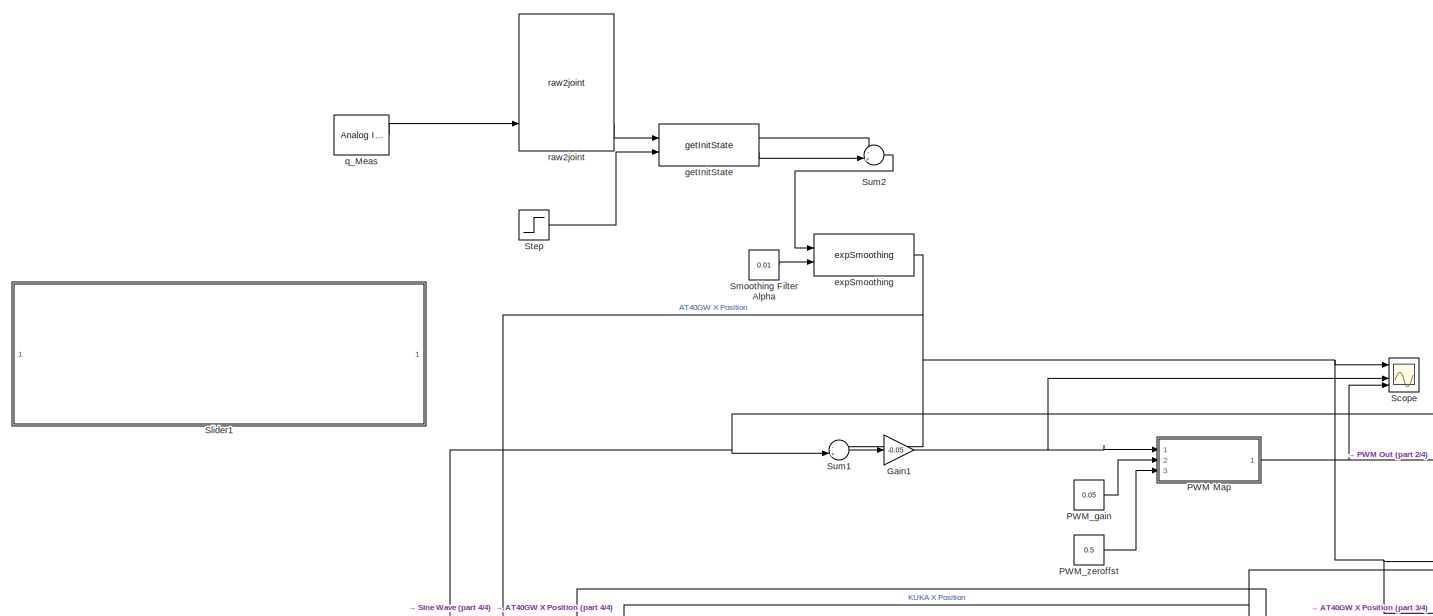
[diagram: root canvas - part 1/4, full width, top band]
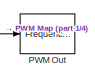
[diagram: root canvas - part 2/4, middle right region]
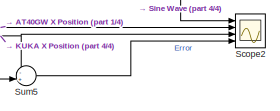
[diagram: root canvas - part 3/4, middle right region]
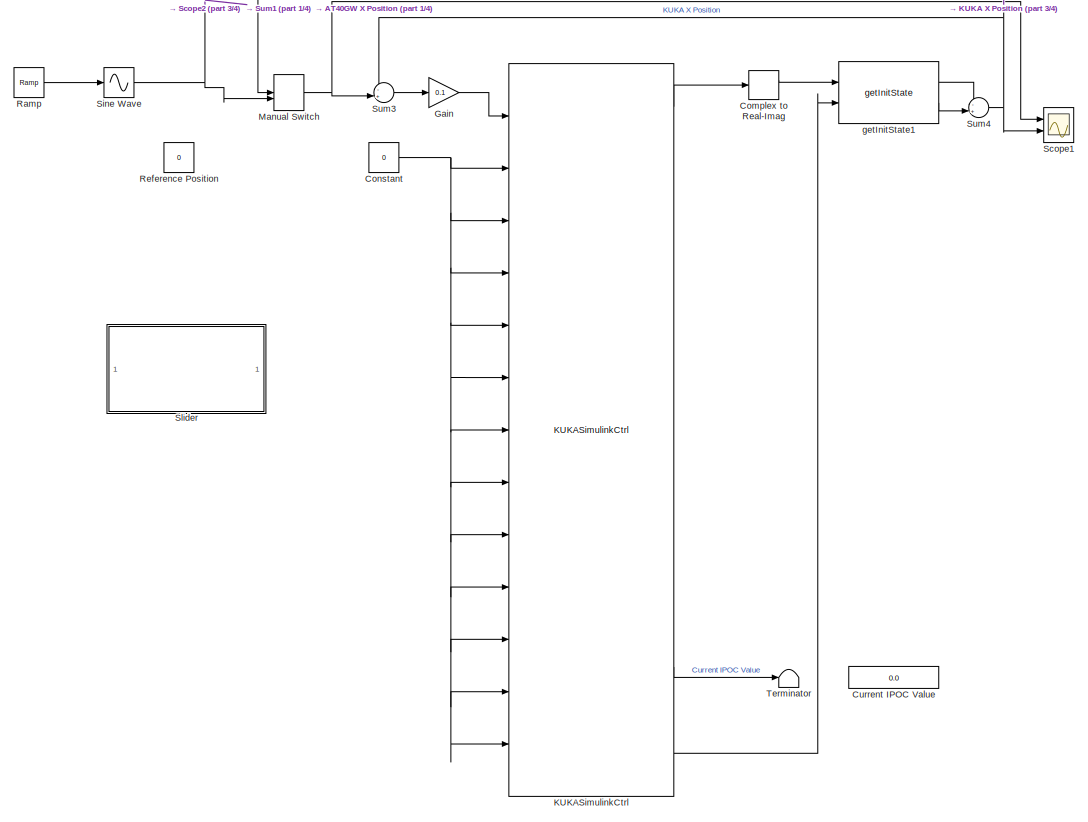
[diagram: root canvas - part 4/4, bottom center region]
MODEL slx_104f3733720f
KIND model
CONFIG AbsTol = auto
CONFIG FixedStep = 0.01
CONFIG MaxStep = auto
CONFIG MinStep = auto
CONFIG RelTol = 1e-3
CONFIG SampleTimeConstraint = Unconstrained
CONFIG Solver = ode5
CONFIG SolverMode = Auto
CONFIG SolverName = ode5
CONFIG StartTime = 0.0
CONFIG StopTime = inf
BLOCK [ComplexToRealImag] Complex to Real-Imag
  Ports = [1, 2]
BLOCK [Constant] Constant
  Value = 0
BLOCK [Display] Current IPOC Value
  Decimation = 1
  Floating = on
  Ports = []
BLOCK [Gain] Gain
  Gain = 0.1
  OutDataTypeStr = Inherit: Inherit via internal rule
  ParamDataTypeStr = Inherit: Inherit via internal rule
  SaturateOnIntegerOverflow = off
BLOCK [Gain] Gain1
  Gain = -0.05
  OutDataTypeStr = Inherit: Inherit via internal rule
  ParamDataTypeStr = Inherit: Inherit via internal rule
  SaturateOnIntegerOverflow = off
BLOCK [Reference] KUKASimulinkCtrl  REF=dcpctrl/KUKASimulinkCtrl
  Ports = [13, 16]
  SourceBlock = dcpctrl/KUKASimulinkCtrl
  SourceType = SubSystem
BLOCK [ManualSwitch] Manual Switch
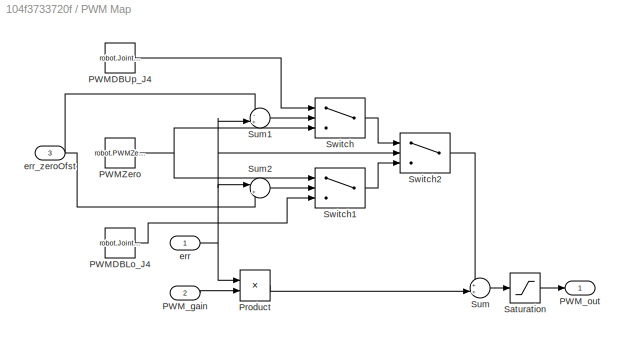
BLOCK [SubSystem] PWM Map
  Ports = [3, 1]
  RequestExecContextInheritance = off
  Variant = off
BLOCK [Constant] PWM Map/PWMDBLo_J4
  Value = robot.Joint(4).PWMLim.DBLower
BLOCK [Constant] PWM Map/PWMDBUp_J4
  Value = robot.Joint(4).PWMLim.DBUpper
BLOCK [Constant] PWM Map/PWMZero
  Value = robot.PWMZero
BLOCK [Inport] PWM Map/PWM_gain 
  IconDisplay = Port number
  Port = 2
BLOCK [Outport] PWM Map/PWM_out
  IconDisplay = Port number
BLOCK [Product] PWM Map/Product
  InputSameDT = off
  OutDataTypeStr = Inherit: Inherit via internal rule
  Ports = [2, 1]
  RndMeth = Floor
  SaturateOnIntegerOverflow = off
BLOCK [Saturate] PWM Map/Saturation
  InputPortMap = u0
  LowerLimit = robot.Joint(4).PWMLim.Min
  Ports = [1, 1]
  UpperLimit = robot.Joint(4).PWMLim.Max
BLOCK [Sum] PWM Map/Sum
  IconShape = round
  InputSameDT = off
  Inputs = ++|
  OutDataTypeStr = Inherit: Inherit via internal rule
  Ports = [2, 1]
  SaturateOnIntegerOverflow = off
BLOCK [Sum] PWM Map/Sum1
  IconShape = round
  InputSameDT = off
  Inputs = -+|
  OutDataTypeStr = Inherit: Inherit via internal rule
  Ports = [2, 1]
  SaturateOnIntegerOverflow = off
BLOCK [Sum] PWM Map/Sum2
  IconShape = round
  InputSameDT = off
  Inputs = |++
  OutDataTypeStr = Inherit: Inherit via internal rule
  Ports = [2, 1]
  SaturateOnIntegerOverflow = off
BLOCK [Switch] PWM Map/Switch
  Criteria = u2 > Threshold
  InputSameDT = off
  SaturateOnIntegerOverflow = off
BLOCK [Switch] PWM Map/Switch1
  InputSameDT = off
  SaturateOnIntegerOverflow = off
BLOCK [Switch] PWM Map/Switch2
  InputSameDT = off
  SaturateOnIntegerOverflow = off
BLOCK [Inport] PWM Map/err
  IconDisplay = Port number
BLOCK [Inport] PWM Map/err_zeroOfst
  IconDisplay = Port number
  Port = 3
BLOCK [Reference] PWM Out  REF=sldrtlib/Frequency Output
  AttributesFormatString = Humusoft\nMF644 [auto]
  Ports = [1]
  SourceBlock = sldrtlib/Frequency Output
  SourceType = Simulink Desktop Real-Time Frequency Output
BLOCK [Constant] PWM_gain
  Value = 0.05
BLOCK [Constant] PWM_zeroffst
  Value = 0.5
BLOCK [Reference] Ramp  REF=simulink/Sources/Ramp
  Ports = [0, 1]
  SourceBlock = simulink/Sources/Ramp
  SourceType = Ramp
BLOCK [Constant] Reference Position
  Value = 0
BLOCK [Scope] Scope
  NumInputPorts = 4
  Ports = [4]
  ScopeSpecificationString = Simulink.scopes.TimeScopeBlockCfg('CurrentConfiguration', extmgr.ConfigurationSet(extmgr.Configuration('Core','General UI',true),extmgr.Configuration('Core','Source UI',true),extmgr.Configuration('Sources','WiredSimulink',true),extmgr.Configuration('Visuals','Time Domain',true,'SerializedDisplays',{struct('MinYLimReal','-253.55081','MaxYLimReal','277.06961','YLabelReal','','MinYLimMag',' 0.00000',...<+1504ch>
BLOCK [Scope] Scope1
  NumInputPorts = 2
  Ports = [2]
  ScopeSpecificationString = Simulink.scopes.TimeScopeBlockCfg('CurrentConfiguration', extmgr.ConfigurationSet(extmgr.Configuration('Core','General UI',true),extmgr.Configuration('Core','Source UI',true),extmgr.Configuration('Sources','WiredSimulink',true,'DataLoggingVariableName','ScopeData1'),extmgr.Configuration('Visuals','Time Domain',true,'SerializedDisplays',{struct('MinYLimReal','-253.55081','MaxYLimReal','277.06961','...<+1526ch>
BLOCK [Scope] Scope2
  NumInputPorts = 4
  Ports = [4]
  ScopeSpecificationString = Simulink.scopes.TimeScopeBlockCfg('CurrentConfiguration', extmgr.ConfigurationSet(extmgr.Configuration('Core','General UI',true),extmgr.Configuration('Core','Source UI',true),extmgr.Configuration('Sources','WiredSimulink',true,'DataLoggingVariableName','ScopeData1'),extmgr.Configuration('Visuals','Time Domain',true,'SerializedDisplays',{struct('MinYLimReal','-452.63216','MaxYLimReal','280.40085','...<+1627ch>
BLOCK [Sin] Sine Wave
  Amplitude = 200
  Frequency = 0.3
  Ports = [1, 1]
  SampleTime = 0
  TimeSource = Use external signal
BLOCK [SubSystem] Slider
  DialogController = hmiCreateDDGDialog
  IsWebBlock = on
  MaskHideContents = on
  Ports = []
  RequestExecContextInheritance = off
  Variant = off
BLOCK [SubSystem] Slider1
  DialogController = hmiCreateDDGDialog
  IsWebBlock = on
  MaskHideContents = on
  Ports = []
  RequestExecContextInheritance = off
  Variant = off
BLOCK [Constant] Smoothing Filter Alpha
  Value = 0.01
BLOCK [Step] Step
  SampleTime = 0
  Time = 0
BLOCK [Sum] Sum1
  IconShape = round
  InputSameDT = off
  Inputs = -+|
  OutDataTypeStr = Inherit: Inherit via internal rule
  Ports = [2, 1]
  SaturateOnIntegerOverflow = off
BLOCK [Sum] Sum2
  IconShape = round
  InputSameDT = off
  Inputs = -+|
  OutDataTypeStr = Inherit: Inherit via internal rule
  Ports = [2, 1]
  SaturateOnIntegerOverflow = off
BLOCK [Sum] Sum3
  IconShape = round
  InputSameDT = off
  Inputs = -+|
  OutDataTypeStr = Inherit: Inherit via internal rule
  Ports = [2, 1]
  SaturateOnIntegerOverflow = off
BLOCK [Sum] Sum4
  IconShape = round
  InputSameDT = off
  Inputs = -+|
  OutDataTypeStr = Inherit: Inherit via internal rule
  Ports = [2, 1]
  SaturateOnIntegerOverflow = off
BLOCK [Sum] Sum5
  IconShape = round
  InputSameDT = off
  Inputs = -+|
  OutDataTypeStr = Inherit: Inherit via internal rule
  Ports = [2, 1]
  SaturateOnIntegerOverflow = off
BLOCK [Terminator] Terminator
BLOCK [Reference] expSmoothing  REF=dcpctrl/expSmoothing
  Ports = [2, 1]
  SourceBlock = dcpctrl/expSmoothing
  SourceType = SubSystem
BLOCK [Reference] getInitState  REF=dcpctrl/getInitState
  Ports = [2, 2]
  SourceBlock = dcpctrl/getInitState
  SourceType = SubSystem
BLOCK [Reference] getInitState1  REF=dcpctrl/getInitState
  Ports = [2, 2]
  SourceBlock = dcpctrl/getInitState
  SourceType = SubSystem
BLOCK [Reference] q_Meas  REF=sldrtlib/Analog Input
  AttributesFormatString = Humusoft\nMF644 [auto]
  Ports = [0, 1]
  SourceBlock = sldrtlib/Analog Input
  SourceType = Simulink Desktop Real-Time Analog Input
BLOCK [Reference] raw2joint  REF=dcpctrl/raw2joint
  Ports = [4, 4]
  SourceBlock = dcpctrl/raw2joint
  SourceType = SubSystem
LINE Complex to Real-Imag:1 -> getInitState1:1
NET Constant:1 -> KUKASimulinkCtrl:10, KUKASimulinkCtrl:11, KUKASimulinkCtrl:12, KUKASimulinkCtrl:13, KUKASimulinkCtrl:2, KUKASimulinkCtrl:3, KUKASimulinkCtrl:4, KUKASimulinkCtrl:5, KUKASimulinkCtrl:6, KUKASimulinkCtrl:7, KUKASimulinkCtrl:8, KUKASimulinkCtrl:9
NET Gain1:1 -> PWM Map:1, Scope:3
LINE Gain:1 -> KUKASimulinkCtrl:1
LINE KUKASimulinkCtrl:1 -> Complex to Real-Imag:1
LINE KUKASimulinkCtrl:14 -> Terminator:1
LINE KUKASimulinkCtrl:16 -> getInitState1:2
NET Manual Switch:1 -> Scope1:1, Sum3:2
LINE PWM Map/PWMDBLo_J4:1 -> PWM Map/Switch1:3
LINE PWM Map/PWMDBUp_J4:1 -> PWM Map/Switch:1
NET PWM Map/PWMZero:1 -> PWM Map/Switch1:1, PWM Map/Switch:3
LINE PWM Map/PWM_gain :1 -> PWM Map/Product:2
LINE PWM Map/Product:1 -> PWM Map/Sum:2
LINE PWM Map/Saturation:1 -> PWM Map/PWM_out:1
LINE PWM Map/Sum1:1 -> PWM Map/Switch:2
LINE PWM Map/Sum2:1 -> PWM Map/Switch1:2
LINE PWM Map/Sum:1 -> PWM Map/Saturation:1
LINE PWM Map/Switch1:1 -> PWM Map/Switch2:3
LINE PWM Map/Switch2:1 -> PWM Map/Sum:1
LINE PWM Map/Switch:1 -> PWM Map/Switch2:1
NET PWM Map/err:1 -> PWM Map/Product:1, PWM Map/Sum1:2, PWM Map/Sum2:1, PWM Map/Switch2:2
NET PWM Map/err_zeroOfst:1 -> PWM Map/Sum1:1, PWM Map/Sum2:2
NET PWM Map:1 -> PWM Out:1, Scope:4
LINE PWM_gain:1 -> PWM Map:2
LINE PWM_zeroffst:1 -> PWM Map:3
LINE Ramp:1 -> Sine Wave:1
NET Sine Wave:1 -> Manual Switch:2, Scope2:1, Sum1:2
LINE Smoothing Filter Alpha:1 -> expSmoothing:2
LINE Step:1 -> getInitState:2
LINE Sum1:1 -> Gain1:1
LINE Sum2:1 -> expSmoothing:1
LINE Sum3:1 -> Gain:1
NET Sum4:1 -> Scope1:2, Scope2:3, Sum3:1, Sum5:1
LINE Sum5:1 -> Scope2:4
NET expSmoothing:1 -> Manual Switch:1, Scope2:2, Scope:1, Sum1:1, Sum5:2
LINE getInitState1:1 -> Sum4:1
LINE getInitState1:2 -> Sum4:2
LINE getInitState:1 -> Sum2:1
LINE getInitState:2 -> Sum2:2
LINE q_Meas:1 -> raw2joint:4
LINE raw2joint:4 -> getInitState:1
note: NET lines group one-source signal fan-out (src -> all destinations, sorted); 1:1 wires keep LINE
